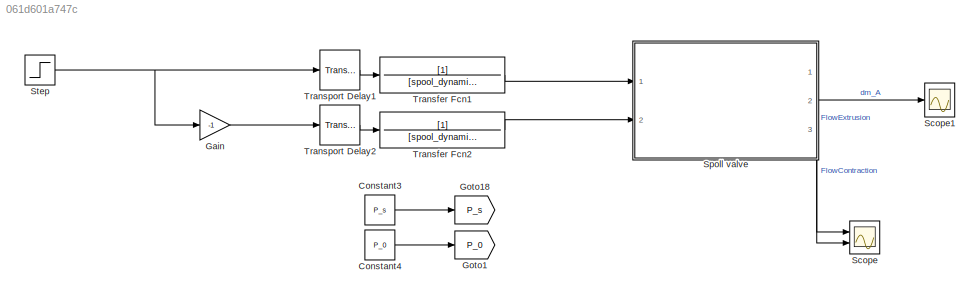
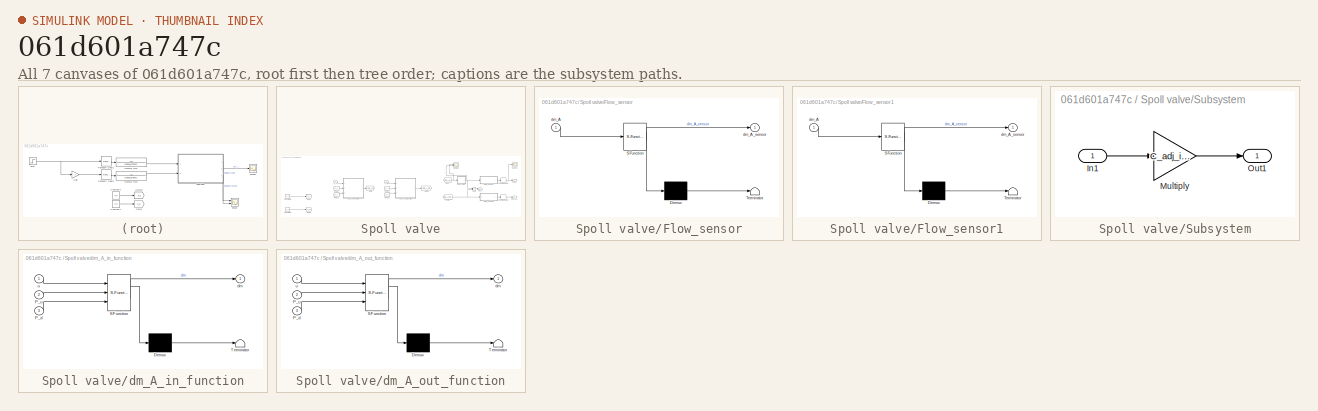
[diagram: thumbnail index - all 7 canvases of the model, root first then tree order]
MODEL slx_061d601a747c
KIND model
CONFIG AbsTol = auto
CONFIG EnableMultiTasking = off
CONFIG FixedStep = auto
CONFIG MaxStep = auto
CONFIG MinStep = auto
CONFIG RelTol = 1e-3
CONFIG SampleTimeConstraint = Unconstrained
CONFIG SolverName = VariableStepAuto
CONFIG StartTime = 0.0
CONFIG StopTime = 100
BLOCK [Constant] Constant3
  Value = P_s
BLOCK [Constant] Constant4
  Value = P_0
BLOCK [Gain] Gain
  Gain = -1
BLOCK [Goto] Goto1
  GotoTag = P_0
  TagVisibility = global
BLOCK [Goto] Goto18
  GotoTag = P_s
  TagVisibility = global
BLOCK [Scope] Scope
  Floating = off
  NumInputPorts = 2
  Ports = [2]
  ScopeSpecificationString = Simulink.scopes.TimeScopeBlockCfg('CurrentConfiguration', extmgr.ConfigurationSet(extmgr.Configuration('Core','General UI',true),extmgr.Configuration('Core','Source UI',true),extmgr.Configuration('Sources','WiredSimulink',true,'DataLoggingVariableName','ScopeData1'),extmgr.Configuration('Visuals','Time Domain',true,'SerializedDisplays',{struct('MinYLimReal','-0.0000007','MaxYLimReal','0.0000067','...<+1480ch>
BLOCK [Scope] Scope1
  Floating = off
  NumInputPorts = 1
  Ports = [1]
  ScopeSpecificationString = Simulink.scopes.TimeScopeBlockCfg('CurrentConfiguration', extmgr.ConfigurationSet(extmgr.Configuration('Core','General UI',true),extmgr.Configuration('Core','Source UI',true),extmgr.Configuration('Sources','WiredSimulink',true,'DataLoggingVariableName','ScopeData2'),extmgr.Configuration('Visuals','Time Domain',true,'SerializedDisplays',{struct('MinYLimReal','-0.000002','MaxYLimReal','0.000018','YL...<+1471ch>
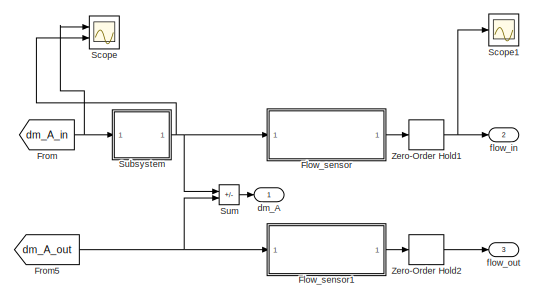
[diagram: Spoll valve - part 1/2, middle right region]
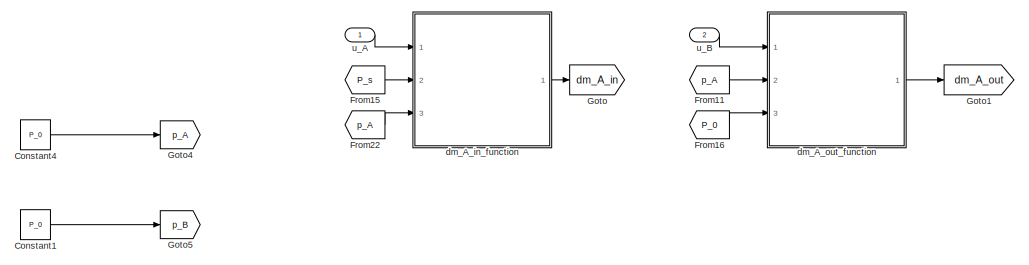
[diagram: Spoll valve - part 2/2, middle left region]
BLOCK [SubSystem] Spoll valve
  PortSchema = {"entries":[{"content":{"sides":[{"content":{"connectorIds":["In1","In2"]},"type":"ConnectorPlacement.EquallySpacedRectSide","uuid":"f49fadee-fa9e-4c00-be17-3013d1757a7f"},{"content":{"connectorIds":["Out1"],"side":"RIGHT"},"type":"ConnectorPlacement.EquallySpacedRectSide","uuid":"640b0073-0df7-45c7-9e72-cb244187d5a1"},{"content":{"connectorIds":[],"side":"TOP"},"type":"ConnectorPlacement.EquallyS...<+403ch>
  Ports = [2, 3]
  RequestExecContextInheritance = off
BLOCK [Constant] Spoll valve/Constant1
  Value = P_0
BLOCK [Constant] Spoll valve/Constant4
  Value = P_0
BLOCK [SubSystem] Spoll valve/Flow_sensor
  ErrorFcn = Stateflow.Translate.translate
  PermitHierarchicalResolution = ExplicitOnly
  Ports = [1, 1]
  RequestExecContextInheritance = off
  SFBlockType = MATLAB Function
  TreatAsAtomicUnit = on
BLOCK [Demux] Spoll valve/Flow_sensor/ Demux 
  Outputs = 1
  Ports = [1, 1]
BLOCK [S-Function] Spoll valve/Flow_sensor/ SFunction 
  EnableBusSupport = on
  FunctionName = sf_sfun
  Parameters = flow_C,flow_C_ratio,flow_noise_var
  PortCounts = [1 2]
  Ports = [1, 2]
  SFcnIsStateOwnerBlock = off
  SFunctionDeploymentMode = off
  Tag = Stateflow S-Function 3
BLOCK [Terminator] Spoll valve/Flow_sensor/ Terminator 
BLOCK [Inport] Spoll valve/Flow_sensor/dm_A
BLOCK [Outport] Spoll valve/Flow_sensor/dm_A_sensor
BLOCK [SubSystem] Spoll valve/Flow_sensor1
  ErrorFcn = Stateflow.Translate.translate
  PermitHierarchicalResolution = ExplicitOnly
  Ports = [1, 1]
  RequestExecContextInheritance = off
  SFBlockType = MATLAB Function
  TreatAsAtomicUnit = on
BLOCK [Demux] Spoll valve/Flow_sensor1/ Demux 
  Outputs = 1
  Ports = [1, 1]
BLOCK [S-Function] Spoll valve/Flow_sensor1/ SFunction 
  EnableBusSupport = on
  FunctionName = sf_sfun
  Parameters = flow_C,flow_C_ratio,flow_noise_var
  PortCounts = [1 2]
  Ports = [1, 2]
  SFcnIsStateOwnerBlock = off
  SFunctionDeploymentMode = off
  Tag = Stateflow S-Function 4
BLOCK [Terminator] Spoll valve/Flow_sensor1/ Terminator 
BLOCK [Inport] Spoll valve/Flow_sensor1/dm_A
BLOCK [Outport] Spoll valve/Flow_sensor1/dm_A_sensor
BLOCK [From] Spoll valve/From
  GotoTag = dm_A_in
BLOCK [From] Spoll valve/From11
  GotoTag = p_A
  TagVisibility = global
BLOCK [From] Spoll valve/From15
  GotoTag = P_s
  TagVisibility = global
BLOCK [From] Spoll valve/From16
  GotoTag = P_0
  TagVisibility = global
BLOCK [From] Spoll valve/From22
  GotoTag = p_A
  TagVisibility = global
BLOCK [From] Spoll valve/From5
  GotoTag = dm_A_out
BLOCK [Goto] Spoll valve/Goto
  GotoTag = dm_A_in
BLOCK [Goto] Spoll valve/Goto1
  GotoTag = dm_A_out
BLOCK [Goto] Spoll valve/Goto4
  GotoTag = p_A
  TagVisibility = global
BLOCK [Goto] Spoll valve/Goto5
  GotoTag = p_B
  TagVisibility = global
BLOCK [Scope] Spoll valve/Scope
  Floating = off
  NumInputPorts = 2
  Ports = [2]
  ScopeSpecificationString = Simulink.scopes.TimeScopeBlockCfg('CurrentConfiguration', extmgr.ConfigurationSet(extmgr.Configuration('Core','General UI',true),extmgr.Configuration('Core','Source UI',true),extmgr.Configuration('Sources','WiredSimulink',true,'DataLoggingVariableName','ScopeData1'),extmgr.Configuration('Visuals','Time Domain',true,'SerializedDisplays',{struct('MinYLimReal','-0.00138','MaxYLimReal','0.01238','YLab...<+1429ch>
BLOCK [Scope] Spoll valve/Scope1
  Floating = off
  NumInputPorts = 1
  Ports = [1]
  ScopeSpecificationString = Simulink.scopes.TimeScopeBlockCfg('CurrentConfiguration', extmgr.ConfigurationSet(extmgr.Configuration('Core','General UI',true),extmgr.Configuration('Core','Source UI',true),extmgr.Configuration('Sources','WiredSimulink',true,'DataLoggingVariableName','ScopeData3'),extmgr.Configuration('Visuals','Time Domain',true,'SerializedDisplays',{struct('MinYLimReal','127.48894','MaxYLimReal','131.60742','Y...<+1433ch>
BLOCK [SubSystem] Spoll valve/Subsystem
  Ports = [1, 1]
  RequestExecContextInheritance = off
BLOCK [Inport] Spoll valve/Subsystem/In1
BLOCK [Gain] Spoll valve/Subsystem/Multiply
  Gain = C_adj_in*(p4*valve1^4 + p3*valve1^3+p2*valve1^2 + p1*valve1 + p0)
BLOCK [Outport] Spoll valve/Subsystem/Out1
BLOCK [Sum] Spoll valve/Sum
  IconShape = rectangular
  Inputs = +-
  Ports = [2, 1]
BLOCK [ZeroOrderHold] Spoll valve/Zero-Order Hold1
  SampleTime = Ts
BLOCK [ZeroOrderHold] Spoll valve/Zero-Order Hold2
  SampleTime = Ts
BLOCK [Outport] Spoll valve/dm_A
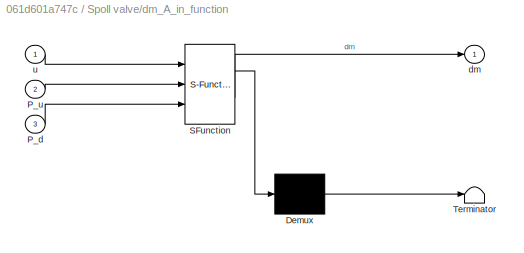
BLOCK [SubSystem] Spoll valve/dm_A_in_function
  ErrorFcn = Stateflow.Translate.translate
  PermitHierarchicalResolution = ExplicitOnly
  Ports = [3, 1]
  RequestExecContextInheritance = off
  SFBlockType = MATLAB Function
  TreatAsAtomicUnit = on
BLOCK [Demux] Spoll valve/dm_A_in_function/ Demux 
  Outputs = 1
  Ports = [1, 1]
BLOCK [S-Function] Spoll valve/dm_A_in_function/ SFunction 
  EnableBusSupport = on
  FunctionName = sf_sfun
  Parameters = C_1,C_2,C_A_in,P_cr,T,gamma
  PortCounts = [3 2]
  Ports = [3, 2]
  SFcnIsStateOwnerBlock = off
  SFunctionDeploymentMode = off
  Tag = Stateflow S-Function 17
BLOCK [Terminator] Spoll valve/dm_A_in_function/ Terminator 
BLOCK [Inport] Spoll valve/dm_A_in_function/P_d
  Port = 3
BLOCK [Inport] Spoll valve/dm_A_in_function/P_u
  Port = 2
BLOCK [Outport] Spoll valve/dm_A_in_function/dm
BLOCK [Inport] Spoll valve/dm_A_in_function/u
BLOCK [SubSystem] Spoll valve/dm_A_out_function
  ErrorFcn = Stateflow.Translate.translate
  PermitHierarchicalResolution = ExplicitOnly
  Ports = [3, 1]
  RequestExecContextInheritance = off
  SFBlockType = MATLAB Function
  TreatAsAtomicUnit = on
BLOCK [Demux] Spoll valve/dm_A_out_function/ Demux 
  Outputs = 1
  Ports = [1, 1]
BLOCK [S-Function] Spoll valve/dm_A_out_function/ SFunction 
  EnableBusSupport = on
  FunctionName = sf_sfun
  Parameters = C_1,C_2,C_A_out,P_cr,T,gamma
  PortCounts = [3 2]
  Ports = [3, 2]
  SFcnIsStateOwnerBlock = off
  SFunctionDeploymentMode = off
  Tag = Stateflow S-Function 18
BLOCK [Terminator] Spoll valve/dm_A_out_function/ Terminator 
BLOCK [Inport] Spoll valve/dm_A_out_function/P_d
  Port = 3
BLOCK [Inport] Spoll valve/dm_A_out_function/P_u
  Port = 2
BLOCK [Outport] Spoll valve/dm_A_out_function/dm
BLOCK [Inport] Spoll valve/dm_A_out_function/u
BLOCK [Outport] Spoll valve/flow_in
  Port = 2
BLOCK [Outport] Spoll valve/flow_out
  Port = 3
BLOCK [Inport] Spoll valve/u_A
BLOCK [Inport] Spoll valve/u_B
  Port = 2
BLOCK [Step] Step
  SampleTime = 0
BLOCK [TransferFcn] Transfer Fcn1
  Denominator = [spool_dynamic 1]
BLOCK [TransferFcn] Transfer Fcn2
  Denominator = [spool_dynamic 1]
BLOCK [TransportDelay] Transport Delay1
  DelayTime = spool_valve_time_delay
  Ports = [1, 1]
BLOCK [TransportDelay] Transport Delay2
  DelayTime = spool_valve_time_delay
  Ports = [1, 1]
LINE Constant3:1 -> Goto18:1
LINE Constant4:1 -> Goto1:1
LINE Gain:1 -> Transport Delay2:1
LINE Spoll valve/Constant1:1 -> Spoll valve/Goto5:1
LINE Spoll valve/Constant4:1 -> Spoll valve/Goto4:1
LINE Spoll valve/Flow_sensor1:1 -> Spoll valve/Zero-Order Hold2:1
LINE Spoll valve/Flow_sensor:1 -> Spoll valve/Zero-Order Hold1:1
LINE Spoll valve/From11:1 -> Spoll valve/dm_A_out_function:2
LINE Spoll valve/From15:1 -> Spoll valve/dm_A_in_function:2
LINE Spoll valve/From16:1 -> Spoll valve/dm_A_out_function:3
LINE Spoll valve/From22:1 -> Spoll valve/dm_A_in_function:3
NET Spoll valve/From5:1 -> Spoll valve/Flow_sensor1:1, Spoll valve/Sum:2
NET Spoll valve/From:1 -> Spoll valve/Scope:1, Spoll valve/Subsystem:1
LINE Spoll valve/Subsystem/In1:1 -> Spoll valve/Subsystem/Multiply:1
LINE Spoll valve/Subsystem/Multiply:1 -> Spoll valve/Subsystem/Out1:1
NET Spoll valve/Subsystem:1 -> Spoll valve/Flow_sensor:1, Spoll valve/Scope:2, Spoll valve/Sum:1
LINE Spoll valve/Sum:1 -> Spoll valve/dm_A:1
NET Spoll valve/Zero-Order Hold1:1 -> Spoll valve/Scope1:1, Spoll valve/flow_in:1
LINE Spoll valve/Zero-Order Hold2:1 -> Spoll valve/flow_out:1
LINE Spoll valve/dm_A_in_function:1 -> Spoll valve/Goto:1
LINE Spoll valve/dm_A_out_function:1 -> Spoll valve/Goto1:1
LINE Spoll valve/u_A:1 -> Spoll valve/dm_A_in_function:1
LINE Spoll valve/u_B:1 -> Spoll valve/dm_A_out_function:1
LINE Spoll valve:1 -> Scope1:1
LINE Spoll valve:2 -> Scope:1
LINE Spoll valve:3 -> Scope:2
NET Step:1 -> Gain:1, Transport Delay1:1
LINE Transfer Fcn1:1 -> Spoll valve:1
LINE Transfer Fcn2:1 -> Spoll valve:2
LINE Transport Delay1:1 -> Transfer Fcn1:1
LINE Transport Delay2:1 -> Transfer Fcn2:1
note: NET lines group one-source signal fan-out (src -> all destinations, sorted); 1:1 wires keep LINE
CHART Spoll valve/Flow_sensor states=1 transitions=1
  STATE_LABEL 'eML_blk_kernel()'
  STATE_LABEL 'SCRIPT:\nfunction dm_A_sensor = fcn(dm_A, flow_C, flow_C_ratio, flow_noise_var)\ndm_A_sensor = flow_C*(flow_C_ratio*dm_A + flow_noise_var*rand());'
CHART Spoll valve/Flow_sensor1 states=1 transitions=1
  STATE_LABEL 'eML_blk_kernel()'
  STATE_LABEL 'SCRIPT:\nfunction dm_A_sensor = fcn(dm_A, flow_C, flow_C_ratio, flow_noise_var)\ndm_A_sensor = flow_C*(flow_C_ratio*dm_A + flow_noise_var*rand());'
CHART Spoll valve/dm_A_in_function states=1 transitions=1
  STATE_LABEL 'eML_blk_kernel()'
  STATE_LABEL 'SCRIPT:\nfunction dm = fcn(u, P_u, P_d, C_A_in, C_1, C_2, P_cr, T, gamma)\nif u > 0    \n    P_ratio = P_d/P_u;\n    if P_ratio <= P_cr && P_ratio >= 0\n        dm = u*C_A_in*C_1*P_u/sqrt(T);\n    elseif P_ratio > P_cr && P_ratio <= 1\n        dm = u*C_A_in*C_2*P_u/sqrt(T)*P_ratio^(1/gamma)*sqrt(1-P_ratio^((gamma-1)/gamma));\n    else\n        %dm = -u*C_A_in*C_2*P_d/sqrt(T)*(1/P_ratio)^(1/gamma)*sqrt(1-(1...<+74ch>'
CHART Spoll valve/dm_A_out_function states=1 transitions=1
  STATE_LABEL 'eML_blk_kernel()'
  STATE_LABEL 'SCRIPT:\nfunction dm = fcn(u, P_u, P_d, C_A_out, C_1, P_cr, C_2, T, gamma)\nif u > 0    \n    P_ratio = P_d/P_u;\n    if P_ratio <= P_cr && P_ratio >= 0\n        dm = u*C_A_out*C_1*P_u/sqrt(T);\n    elseif P_ratio > P_cr && P_ratio <= 1\n        dm = u*C_A_out*C_2*P_u/sqrt(T)*P_ratio^(1/gamma)*sqrt(1-P_ratio^((gamma-1)/gamma));\n    else\n        %dm = -u*C_A_out*C_2*P_d/sqrt(T)*(1/P_ratio)^(1/gamma)*sqrt(...<+78ch>'
CHART  states=0 transitions=0
CHART  states=0 transitions=0
CHART  states=0 transitions=0
CHART  states=0 transitions=0
